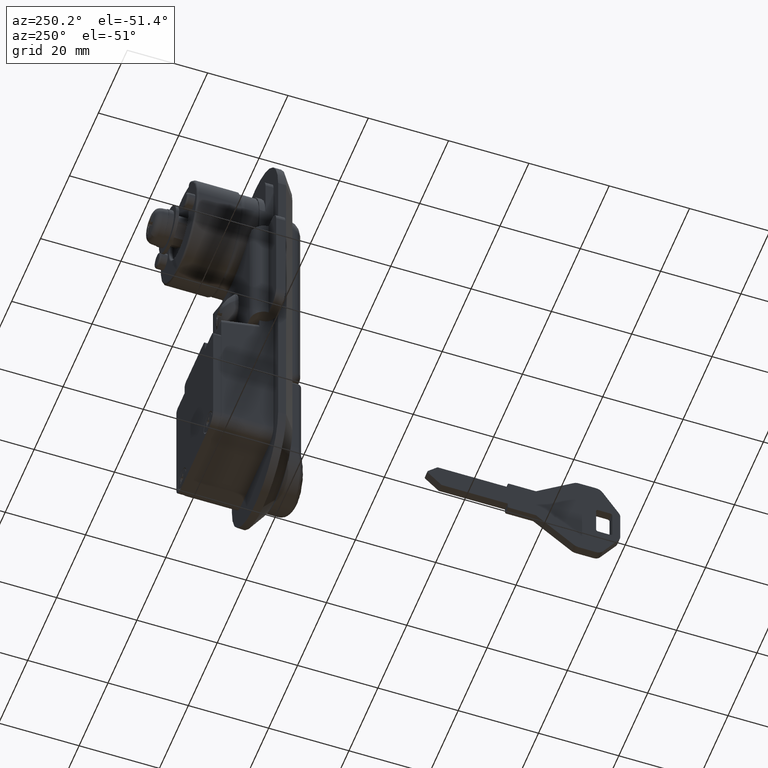
[diagram: clean part render]
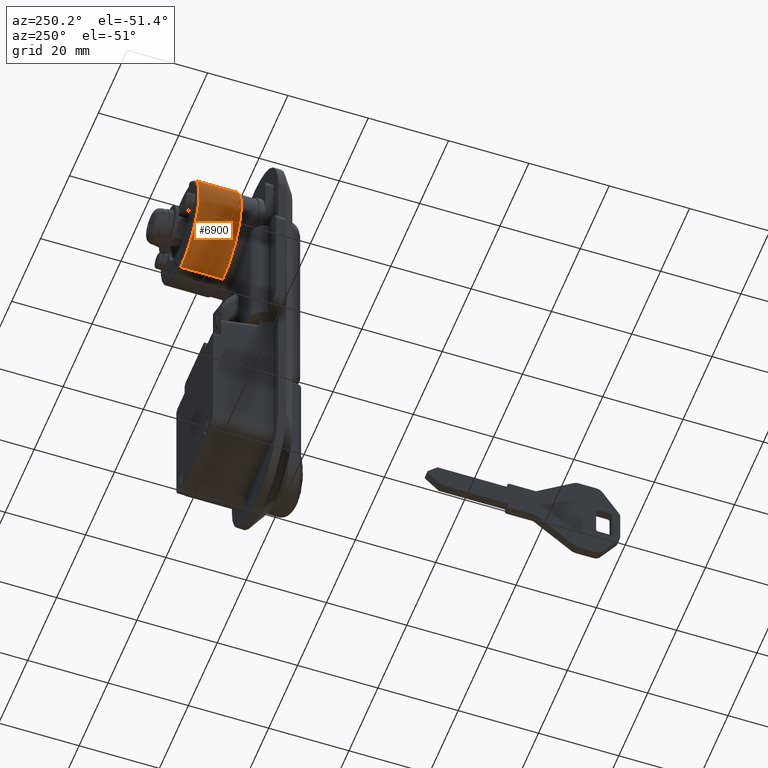
[diagram: same view with one face highlighted and labeled with its STEP entity id]
A machine part, auxiliary view. The second image highlights one B-rep face of the part: STEP entity #6900.
In plain terms, the highlighted cylindrical surface (partial cylindrical patch) has radius 12.8 mm, axis along (0, -1, 0).
Its self-contained STEP definition (entity closure, byte-faithful):
#6464 = ORIENTED_EDGE ( 'NONE', *, *, #6945, .F. ) ;
#6874 = EDGE_CURVE ( 'NONE', #6903, #6875, #12702, .T. ) ;
#6875 = VERTEX_POINT ( 'NONE', #12697 ) ;
#6876 = ORIENTED_EDGE ( 'NONE', *, *, #6877, .T. ) ;
#6877 = EDGE_CURVE ( 'NONE', #6875, #6878, #12696, .T. ) ;
#6878 = VERTEX_POINT ( 'NONE', #12692 ) ;
#6879 = ORIENTED_EDGE ( 'NONE', *, *, #6880, .T. ) ;
#6880 = EDGE_CURVE ( 'NONE', #6878, #6881, #12691, .T. ) ;
#6881 = VERTEX_POINT ( 'NONE', #12686 ) ;
#6882 = ORIENTED_EDGE ( 'NONE', *, *, #6883, .F. ) ;
#6883 = EDGE_CURVE ( 'NONE', #6884, #6881, #12685, .T. ) ;
#6884 = VERTEX_POINT ( 'NONE', #12681 ) ;
#6885 = ORIENTED_EDGE ( 'NONE', *, *, #6886, .F. ) ;
#6886 = EDGE_CURVE ( 'NONE', #6887, #6884, #12743, .T. ) ;
#6887 = VERTEX_POINT ( 'NONE', #12738 ) ;
#6900 = ADVANCED_FACE ( 'NONE', ( #12715 ), #12779, .T. ) ;
#6901 = EDGE_LOOP ( 'NONE', ( #6902, #6876, #6879, #6882, #6885, #6464 ) ) ;
#6902 = ORIENTED_EDGE ( 'NONE', *, *, #6874, .T. ) ;
#6903 = VERTEX_POINT ( 'NONE', #12774 ) ;
#6945 = EDGE_CURVE ( 'NONE', #6903, #6887, #12830, .T. ) ;
#12681 = CARTESIAN_POINT ( 'NONE',  ( 23.19999999999999900, 0.0000000000000000000, 12.80000000000001500 ) ) ;
#12682 = DIRECTION ( 'NONE',  ( -1.000000000000000000, 0.0000000000000000000, 0.0000000000000000000 ) ) ;
#12683 = VECTOR ( 'NONE', #12682, 1000.000000000000000 ) ;
#12684 = CARTESIAN_POINT ( 'NONE',  ( 1012.999999999999900, 0.0000000000000000000, 12.80000000000001500 ) ) ;
#12685 = LINE ( 'NONE', #12684, #12683 ) ;
#12686 = CARTESIAN_POINT ( 'NONE',  ( 13.00000000000000000, 0.0000000000000000000, 12.80000000000001500 ) ) ;
#12687 = DIRECTION ( 'NONE',  ( 0.0000000000000000000, 0.0000000000000000000, 1.000000000000000000 ) ) ;
#12688 = DIRECTION ( 'NONE',  ( 1.000000000000000000, 0.0000000000000000000, 0.0000000000000000000 ) ) ;
#12689 = CARTESIAN_POINT ( 'NONE',  ( 13.00000000000000000, 0.0000000000000000000, 1.421085471520200100E-014 ) ) ;
#12690 = AXIS2_PLACEMENT_3D ( 'NONE', #12689, #12688, #12687 ) ;
#12691 = CIRCLE ( 'NONE', #12690, 12.80000000000000100 ) ;
#12692 = CARTESIAN_POINT ( 'NONE',  ( 13.00000000000000000, 1.567547902908612200E-015, -12.79999999999998600 ) ) ;
#12693 = DIRECTION ( 'NONE',  ( -1.000000000000000000, 0.0000000000000000000, 0.0000000000000000000 ) ) ;
#12694 = VECTOR ( 'NONE', #12693, 1000.000000000000000 ) ;
#12695 = CARTESIAN_POINT ( 'NONE',  ( 1012.999999999999900, 1.567547902908612200E-015, -12.79999999999998600 ) ) ;
#12696 = LINE ( 'NONE', #12695, #12694 ) ;
#12697 = CARTESIAN_POINT ( 'NONE',  ( 23.50000000000000000, 1.567547902908612200E-015, -12.79999999999998600 ) ) ;
#12698 = DIRECTION ( 'NONE',  ( 0.0000000000000000000, 0.0000000000000000000, 1.000000000000000000 ) ) ;
#12699 = DIRECTION ( 'NONE',  ( -1.000000000000000000, 0.0000000000000000000, 0.0000000000000000000 ) ) ;
#12700 = CARTESIAN_POINT ( 'NONE',  ( 23.50000000000000000, 0.0000000000000000000, 1.421085471520200100E-014 ) ) ;
#12701 = AXIS2_PLACEMENT_3D ( 'NONE', #12700, #12699, #12698 ) ;
#12702 = CIRCLE ( 'NONE', #12701, 12.80000000000000100 ) ;
#12715 = FACE_OUTER_BOUND ( 'NONE', #6901, .T. ) ;
#12738 = CARTESIAN_POINT ( 'NONE',  ( 23.19999999999999900, 8.135593209581438500, 9.881909139476020300 ) ) ;
#12739 = DIRECTION ( 'NONE',  ( 0.0000000000000000000, 8.881784197001252300E-016, 1.000000000000000000 ) ) ;
#12740 = DIRECTION ( 'NONE',  ( 1.000000000000000000, 0.0000000000000000000, 0.0000000000000000000 ) ) ;
#12741 = CARTESIAN_POINT ( 'NONE',  ( 23.19999999999999900, 0.0000000000000000000, 1.421085471520200100E-014 ) ) ;
#12742 = AXIS2_PLACEMENT_3D ( 'NONE', #12741, #12740, #12739 ) ;
#12743 = CIRCLE ( 'NONE', #12742, 12.80000000000000100 ) ;
#12774 = CARTESIAN_POINT ( 'NONE',  ( 23.50000000000000000, 8.135593209581438500, 9.881909139476020300 ) ) ;
#12775 = DIRECTION ( 'NONE',  ( 0.0000000000000000000, 0.0000000000000000000, 1.000000000000000000 ) ) ;
#12776 = DIRECTION ( 'NONE',  ( -1.000000000000000000, 0.0000000000000000000, 0.0000000000000000000 ) ) ;
#12777 = CARTESIAN_POINT ( 'NONE',  ( 1012.999999999999900, 0.0000000000000000000, 1.421085471520200100E-014 ) ) ;
#12778 = AXIS2_PLACEMENT_3D ( 'NONE', #12777, #12776, #12775 ) ;
#12779 = CYLINDRICAL_SURFACE ( 'NONE', #12778, 12.80000000000000100 ) ;
#12827 = DIRECTION ( 'NONE',  ( -1.000000000000000000, 0.0000000000000000000, 0.0000000000000000000 ) ) ;
#12828 = VECTOR ( 'NONE', #12827, 1000.000000000000000 ) ;
#12829 = CARTESIAN_POINT ( 'NONE',  ( 1023.200000000000200, 8.135593209581438500, 9.881909139476020300 ) ) ;
#12830 = LINE ( 'NONE', #12829, #12828 ) ;